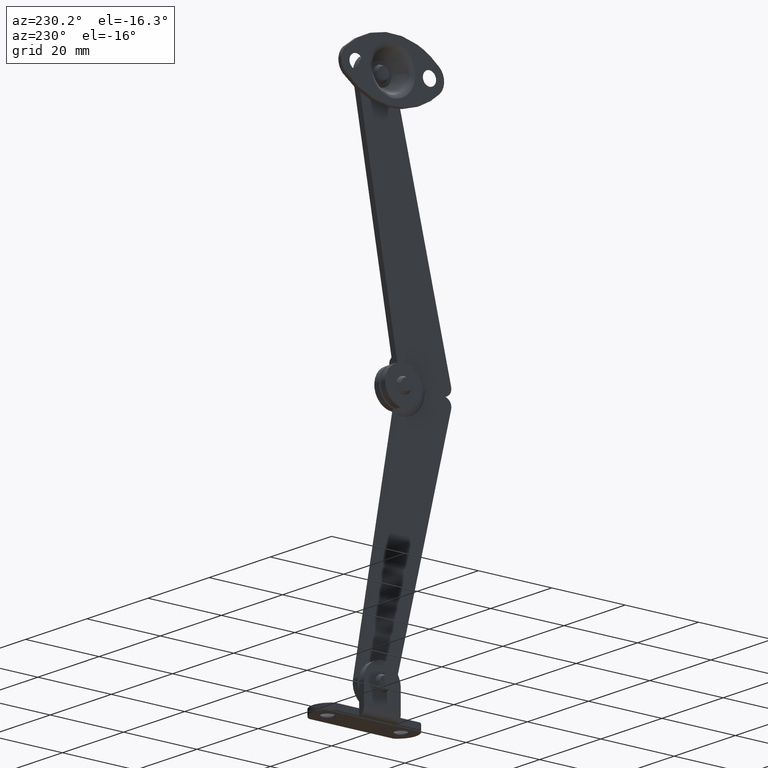
[diagram: clean part render]
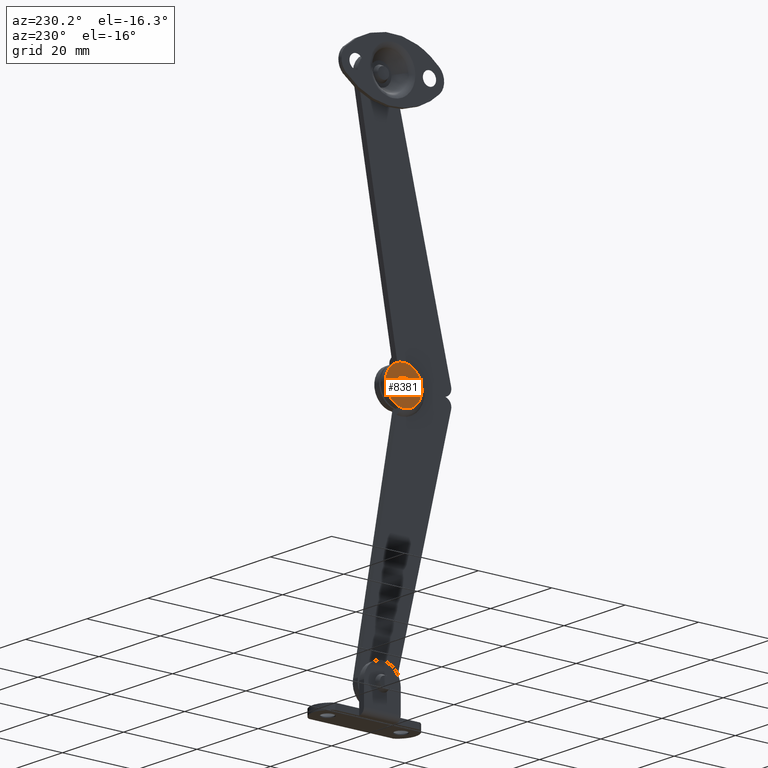
[diagram: same view with one face highlighted and labeled with its STEP entity id]
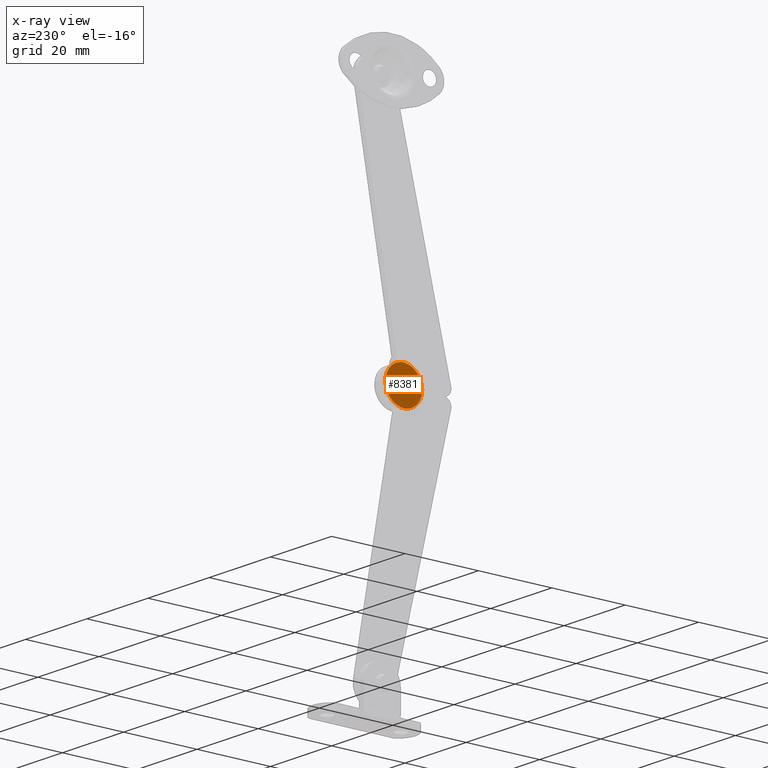
[diagram: x-ray of the same camera — body ghosted, the highlighted face saturated]
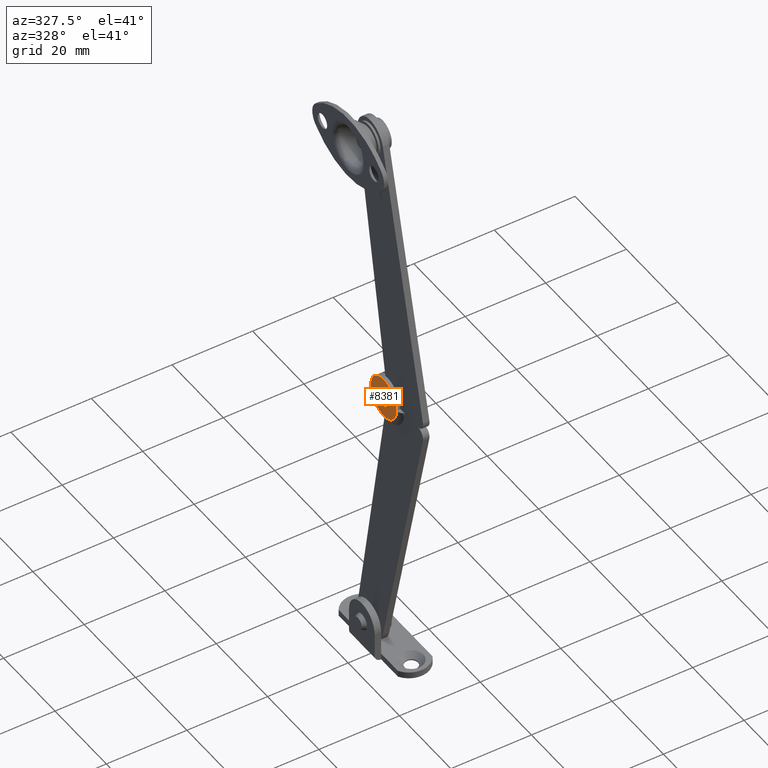
[diagram: same view with one face highlighted and labeled with its STEP entity id]
A machine part, auxiliary view. The second image highlights one B-rep face of the part: STEP entity #8381.
The next image is the same camera in x-ray: the body ghosted, the highlighted face saturated — about 0% of this face is hidden behind the body in this view.
A second angle (auxiliary view) of the same face is appended — the face is thin or edge-on in the first view.
In plain terms, the highlighted face is a freeform B-spline surface patch.
Its self-contained STEP definition (entity closure, byte-faithful):
#7824=CARTESIAN_POINT('',(4.500006000000111,-5.604471133444305,-1.013385768801150));
#7825=VERTEX_POINT('',#7824);
#7831=CARTESIAN_POINT('',(4.500006000000110,-6.710388000000080,-1.499999999999999));
#7832=VERTEX_POINT('',#7831);
#7833=CARTESIAN_POINT('',(4.500006000000111,-5.604471133444305,-1.013385768801150));
#7834=CARTESIAN_POINT('',(4.500006000000128,-5.709436295201111,-1.128058905362899));
#7835=CARTESIAN_POINT('',(4.500006000000090,-5.945203522059025,-1.316050351532093));
#7836=CARTESIAN_POINT('',(4.500006000000112,-6.334728594209095,-1.469693722511408));
#7837=CARTESIAN_POINT('',(4.500006000000112,-6.593806675571779,-1.500013809546626));
#7838=CARTESIAN_POINT('',(4.500006000000110,-6.710388000000080,-1.499999999999999));
#7839=B_SPLINE_CURVE_WITH_KNOTS('',3,(#7833,#7834,#7835,#7836,#7837,#7838),.UNSPECIFIED.,.F.,.U.,(4,1,1,4),(0.000000109818324,0.466360325648221,0.893821501505424,1.243582495991093),.UNSPECIFIED.);
#7840=EDGE_CURVE('',#7825,#7832,#7839,.T.);
#7842=CARTESIAN_POINT('',(4.500006000000109,-8.210387999995289,0.000003790615150));
#7843=VERTEX_POINT('',#7842);
#7844=CARTESIAN_POINT('',(4.500006000000110,-6.710388000000080,-1.499999999999999));
#7845=CARTESIAN_POINT('',(4.500006000000100,-6.955939294059756,-1.500534997761081));
#7846=CARTESIAN_POINT('',(4.500006000000124,-7.360360131797979,-1.398278984629718));
#7847=CARTESIAN_POINT('',(4.500006000000092,-7.765844096791120,-1.089633067797403));
#7848=CARTESIAN_POINT('',(4.500006000000114,-8.008612986051224,-0.778534661173680));
#7849=CARTESIAN_POINT('',(4.500006000000106,-8.168483321975804,-0.429488636082556));
#7850=CARTESIAN_POINT('',(4.500006000000122,-8.210455759908124,-0.147263010218640));
#7851=CARTESIAN_POINT('',(4.500006000000109,-8.210387999995289,0.000003790615150));
#7852=B_SPLINE_CURVE_WITH_KNOTS('',3,(#7844,#7845,#7846,#7847,#7848,#7849,#7850,#7851),.UNSPECIFIED.,.F.,.U.,(4,1,1,1,1,4),(0.000000368189490,0.736337971715118,1.214889493290811,1.509450104082586,1.914465666482695,2.356255753075659),.UNSPECIFIED.);
#7853=EDGE_CURVE('',#7832,#7843,#7852,.T.);
#7855=CARTESIAN_POINT('',(4.500006000000110,-6.710388000000080,1.500000000000001));
#7856=VERTEX_POINT('',#7855);
#7857=CARTESIAN_POINT('',(4.500006000000109,-8.210387999995289,0.000003790615150));
#7858=CARTESIAN_POINT('',(4.500006000000106,-8.210873540668027,0.245579151094590));
#7859=CARTESIAN_POINT('',(4.500006000000121,-8.124136536293444,0.588630305172052));
#7860=CARTESIAN_POINT('',(4.500006000000102,-7.822641258287996,1.039874385737403));
#7861=CARTESIAN_POINT('',(4.500006000000113,-7.397242673531440,1.389085235859584));
#7862=CARTESIAN_POINT('',(4.500006000000111,-6.955898305445690,1.500500376028330));
#7863=CARTESIAN_POINT('',(4.500006000000110,-6.710388000000080,1.500000000000001));
#7864=B_SPLINE_CURVE_WITH_KNOTS('',3,(#7857,#7858,#7859,#7860,#7861,#7862,#7863),.UNSPECIFIED.,.F.,.U.,(4,1,1,1,4),(0.000000373360230,0.736336639617166,1.030905584332856,1.619915210400696,2.356251480062296),.UNSPECIFIED.);
#7865=EDGE_CURVE('',#7843,#7856,#7864,.T.);
#7867=CARTESIAN_POINT('',(4.500006000000110,-5.635412035081572,1.046147137325886));
#7868=VERTEX_POINT('',#7867);
#7869=CARTESIAN_POINT('',(4.500006000000110,-6.710388000000080,1.500000000000001));
#7870=CARTESIAN_POINT('',(4.500006000000115,-6.535599539063233,1.500096725524690));
#7871=CARTESIAN_POINT('',(4.500006000000104,-6.136160362613977,1.429415054980053));
#7872=CARTESIAN_POINT('',(4.500006000000118,-5.791927111311789,1.207476131066099));
#7873=CARTESIAN_POINT('',(4.500006000000110,-5.635412035081572,1.046147137325886));
#7874=B_SPLINE_CURVE_WITH_KNOTS('',3,(#7869,#7870,#7871,#7872,#7873),.UNSPECIFIED.,.F.,.U.,(4,1,4),(0.000000091364978,0.524366102126810,1.198513690536692),.UNSPECIFIED.);
#7875=EDGE_CURVE('',#7856,#7868,#7874,.T.);
#7910=CARTESIAN_POINT('',(4.500006000000110,-5.210388000004869,-0.000003790615154));
#7911=VERTEX_POINT('',#7910);
#7912=CARTESIAN_POINT('',(4.500006000000110,-5.635412035081572,1.046147137325886));
#7913=CARTESIAN_POINT('',(4.500006000000099,-5.458217738167117,0.864988009533253));
#7914=CARTESIAN_POINT('',(4.500006000000126,-5.261799310962168,0.518600194550677));
#7915=CARTESIAN_POINT('',(4.500006000000103,-5.210372472963631,0.132644061082650));
#7916=CARTESIAN_POINT('',(4.500006000000110,-5.210388000004869,-0.000003790615154));
#7917=B_SPLINE_CURVE_WITH_KNOTS('',3,(#7912,#7913,#7914,#7915,#7916),.UNSPECIFIED.,.F.,.U.,(4,1,4),(0.000000076971883,0.759764867459417,1.157743025367433),.UNSPECIFIED.);
#7918=EDGE_CURVE('',#7868,#7911,#7917,.T.);
#7920=CARTESIAN_POINT('',(4.500006000000110,-5.210388000004869,-0.000003790615154));
#7921=CARTESIAN_POINT('',(4.500006000000109,-5.210276118796068,-0.173876584280745));
#7922=CARTESIAN_POINT('',(4.500006000000112,-5.275611083009330,-0.544664211296823));
#7923=CARTESIAN_POINT('',(4.500006000000108,-5.471191733155799,-0.868244519640947));
#7924=CARTESIAN_POINT('',(4.500006000000111,-5.604471133444305,-1.013385768801150));
#7925=B_SPLINE_CURVE_WITH_KNOTS('',3,(#7920,#7921,#7922,#7923,#7924),.UNSPECIFIED.,.F.,.U.,(4,1,4),(0.000000079510323,0.521589012086496,1.112668617737778),.UNSPECIFIED.);
#7926=EDGE_CURVE('',#7911,#7825,#7925,.T.);
#8148=CARTESIAN_POINT('',(4.500006000000110,-5.831158116365630,-4.985865837478980));
#8149=VERTEX_POINT('',#8148);
#8186=CARTESIAN_POINT('',(4.500006000000110,-11.773183999899739,0.000031872664609));
#8187=VERTEX_POINT('',#8186);
#8199=CARTESIAN_POINT('',(4.500006000000110,-11.773183999899739,0.000031872664609));
#8200=CARTESIAN_POINT('',(4.500006000000104,-11.773222829247160,-0.345131517566857));
#8201=CARTESIAN_POINT('',(4.500006000000107,-11.695274888935639,-1.104498438262076));
#8202=CARTESIAN_POINT('',(4.500006000000102,-11.278132611386081,-2.334078512914569));
#8203=CARTESIAN_POINT('',(4.500006000000099,-10.560855153937640,-3.367437897311870));
#8204=CARTESIAN_POINT('',(4.500006000000105,-9.639008227152239,-4.173356393754805));
#8205=CARTESIAN_POINT('',(4.500006000000099,-8.731291727036838,-4.685971526625244));
#8206=CARTESIAN_POINT('',(4.500006000000105,-7.425776653603263,-5.084019707823704));
#8207=CARTESIAN_POINT('',(4.500006000000107,-6.443021634343375,-5.094336264616172));
#8208=CARTESIAN_POINT('',(4.500006000000110,-5.831158116365630,-4.985865837478980));
#8209=B_SPLINE_CURVE_WITH_KNOTS('',3,(#8199,#8200,#8201,#8202,#8203,#8204,#8205,#8206,#8207,#8208),.UNSPECIFIED.,.F.,.U.,(4,1,1,1,1,1,1,4),(0.000000245281635,1.035501853003464,2.278143574293793,3.865940329094335,4.763364720928647,5.936955407609319,6.972508663592540,8.836432168523897),.UNSPECIFIED.);
#8210=EDGE_CURVE('',#8187,#8149,#8209,.T.);
#8241=CARTESIAN_POINT('',(4.500006000000110,-11.710433300928500,0.000031872664609));
#8242=VERTEX_POINT('',#8241);
#8248=CARTESIAN_POINT('',(4.500006000000110,-11.710433300928500,0.000031872664609));
#8249=CARTESIAN_POINT('',(4.500006000000110,-11.773183999899739,0.000031872664609));
#8250=QUASI_UNIFORM_CURVE('',1,(#8248,#8249),.UNSPECIFIED.,.F.,.U.);
#8251=EDGE_CURVE('',#8242,#8187,#8250,.T.);
#8323=CARTESIAN_POINT('',(4.500006000000099,-1.210870520815324,5.501910854655165));
#8324=CARTESIAN_POINT('',(4.500006000000099,-12.275671766622880,5.501910854655165));
#8325=CARTESIAN_POINT('',(4.500006000000099,-1.210870520815324,-5.565370486153520));
#8326=CARTESIAN_POINT('',(4.500006000000099,-12.275671766622880,-5.565370486153521));
#8327=B_SPLINE_SURFACE_WITH_KNOTS('',1,1,((#8323,#8325),(#8324,#8326)),.UNSPECIFIED.,.F.,.F.,.U.,(2,2),(2,2),(0.0,11.064801245807560),(0.0,11.067281340808689),.UNSPECIFIED.);
#8328=ORIENTED_EDGE('',*,*,#8251,.F.);
#8329=CARTESIAN_POINT('',(4.500006000000110,-3.496410312359982,3.830233090774930));
#8330=VERTEX_POINT('',#8329);
#8331=CARTESIAN_POINT('',(4.500006000000110,-11.710433300928500,0.000031872664609));
#8332=CARTESIAN_POINT('',(4.500006000000107,-11.710973530927379,0.620498129113141));
#8333=CARTESIAN_POINT('',(4.500006000000111,-11.504288131224881,1.713246151606076));
#8334=CARTESIAN_POINT('',(4.500006000000110,-10.799829797835470,2.960440582954687));
#8335=CARTESIAN_POINT('',(4.500006000000110,-9.987440865126564,3.826481614315951));
#8336=CARTESIAN_POINT('',(4.500006000000109,-9.204568042863787,4.367542843218208));
#8337=CARTESIAN_POINT('',(4.500006000000095,-8.284485711797547,4.776844449353693));
#8338=CARTESIAN_POINT('',(4.500006000000147,-7.416352279875344,4.982398347615908));
#8339=CARTESIAN_POINT('',(4.500006000000074,-6.350078521762634,5.022435939954051));
#8340=CARTESIAN_POINT('',(4.500006000000095,-5.439920734287283,4.869598769464747));
#8341=CARTESIAN_POINT('',(4.500006000000173,-4.414812159292682,4.482120105378186));
#8342=CARTESIAN_POINT('',(4.500005999999955,-3.835791611329419,4.115211019100904));
#8343=CARTESIAN_POINT('',(4.500006000000110,-3.496410312359982,3.830233090774930));
#8344=B_SPLINE_CURVE_WITH_KNOTS('',3,(#8331,#8332,#8333,#8334,#8335,#8336,#8337,#8338,#8339,#8340,#8341,#8342,#8343),.UNSPECIFIED.,.F.,.U.,(4,1,1,1,1,1,1,1,1,1,4),(0.000000312504527,1.861236751232761,3.279379895273694,4.254349866108160,5.406607566754246,6.115550168105958,7.267760362310396,8.065470919307728,9.306355728527951,10.015415763936749,11.344858291763350),.UNSPECIFIED.);
#8345=EDGE_CURVE('',#8242,#8330,#8344,.T.);
#8346=ORIENTED_EDGE('',*,*,#8345,.T.);
#8347=CARTESIAN_POINT('',(4.500006000000110,-5.842113071824290,-4.924093762838240));
#8348=VERTEX_POINT('',#8347);
#8349=CARTESIAN_POINT('',(4.500006000000110,-3.496410312359982,3.830233090774930));
#8350=CARTESIAN_POINT('',(4.500006000000116,-3.088838098989363,3.488603272763695));
#8351=CARTESIAN_POINT('',(4.500006000000102,-2.443249298318618,2.741556886974912));
#8352=CARTESIAN_POINT('',(4.500006000000126,-1.932085414009537,1.598823992500550));
#8353=CARTESIAN_POINT('',(4.500006000000097,-1.711923121836881,0.554802191143775));
#8354=CARTESIAN_POINT('',(4.500006000000111,-1.687741469060242,-0.544268148060193));
#8355=CARTESIAN_POINT('',(4.500006000000105,-1.955667939036603,-1.707429158585507));
#8356=CARTESIAN_POINT('',(4.500006000000114,-2.525890660396106,-2.817413050266409));
#8357=CARTESIAN_POINT('',(4.500006000000084,-3.201071214604546,-3.611068265073956));
#8358=CARTESIAN_POINT('',(4.500006000000171,-3.972619824320158,-4.212216408724824));
#8359=CARTESIAN_POINT('',(4.500005999999956,-4.808427563503402,-4.661917848568002));
#8360=CARTESIAN_POINT('',(4.500006000000268,-5.463878218828574,-4.857483136694644));
#8361=CARTESIAN_POINT('',(4.500006000000110,-5.842113071824290,-4.924093762838240));
#8362=B_SPLINE_CURVE_WITH_KNOTS('',3,(#8349,#8350,#8351,#8352,#8353,#8354,#8355,#8356,#8357,#8358,#8359,#8360,#8361),.UNSPECIFIED.,.F.,.U.,(4,1,1,1,1,1,1,1,1,1,4),(0.000000312504268,1.595350289262246,2.924846621361981,3.722535324097981,4.786162158353807,6.204207965336935,7.267755768410878,8.508638410896779,9.306349845952944,10.192690267934680,11.344851120689130),.UNSPECIFIED.);
#8363=EDGE_CURVE('',#8330,#8348,#8362,.T.);
#8364=ORIENTED_EDGE('',*,*,#8363,.T.);
#8365=CARTESIAN_POINT('',(4.500006000000110,-5.831158116365630,-4.985865837478980));
#8366=CARTESIAN_POINT('',(4.500006000000110,-5.842113071824290,-4.924093762838240));
#8367=QUASI_UNIFORM_CURVE('',1,(#8365,#8366),.UNSPECIFIED.,.F.,.U.);
#8368=EDGE_CURVE('',#8149,#8348,#8367,.T.);
#8369=ORIENTED_EDGE('',*,*,#8368,.F.);
#8370=ORIENTED_EDGE('',*,*,#8210,.F.);
#8371=EDGE_LOOP('',(#8328,#8346,#8364,#8369,#8370));
#8372=FACE_OUTER_BOUND('',#8371,.T.);
#8373=ORIENTED_EDGE('',*,*,#7853,.F.);
#8374=ORIENTED_EDGE('',*,*,#7840,.F.);
#8375=ORIENTED_EDGE('',*,*,#7926,.F.);
#8376=ORIENTED_EDGE('',*,*,#7918,.F.);
#8377=ORIENTED_EDGE('',*,*,#7875,.F.);
#8378=ORIENTED_EDGE('',*,*,#7865,.F.);
#8379=EDGE_LOOP('',(#8373,#8374,#8375,#8376,#8377,#8378));
#8380=FACE_BOUND('',#8379,.T.);
#8381=ADVANCED_FACE('',(#8372,#8380),#8327,.F.);